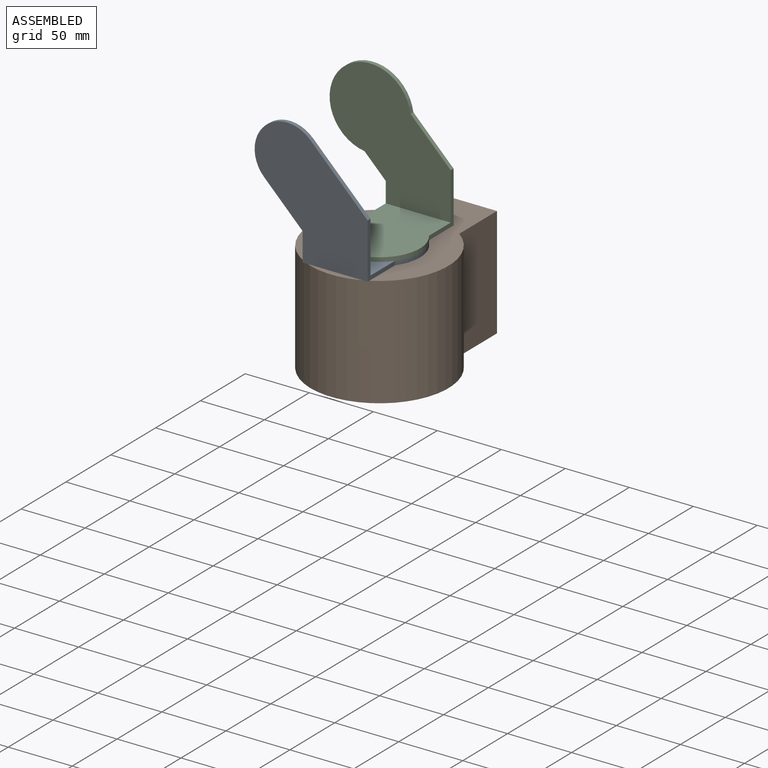
[diagram: assembled view]
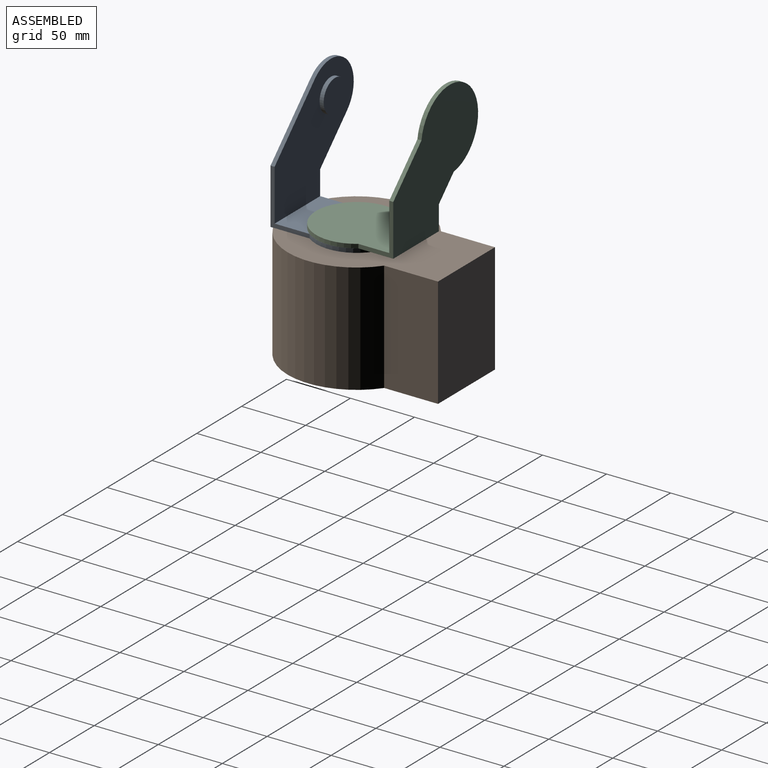
[diagram: assembled view, second angle]
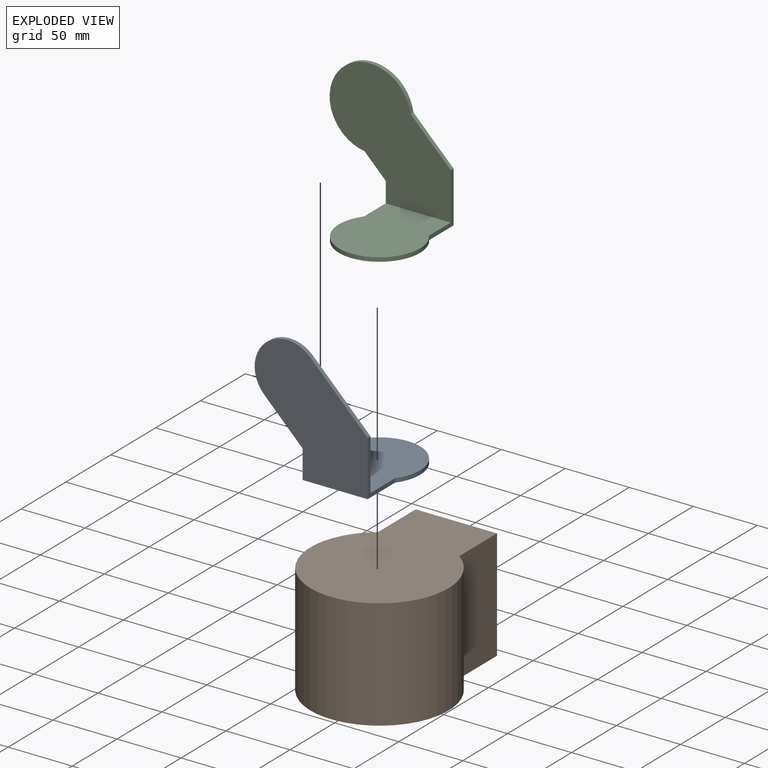
[diagram: exploded view]
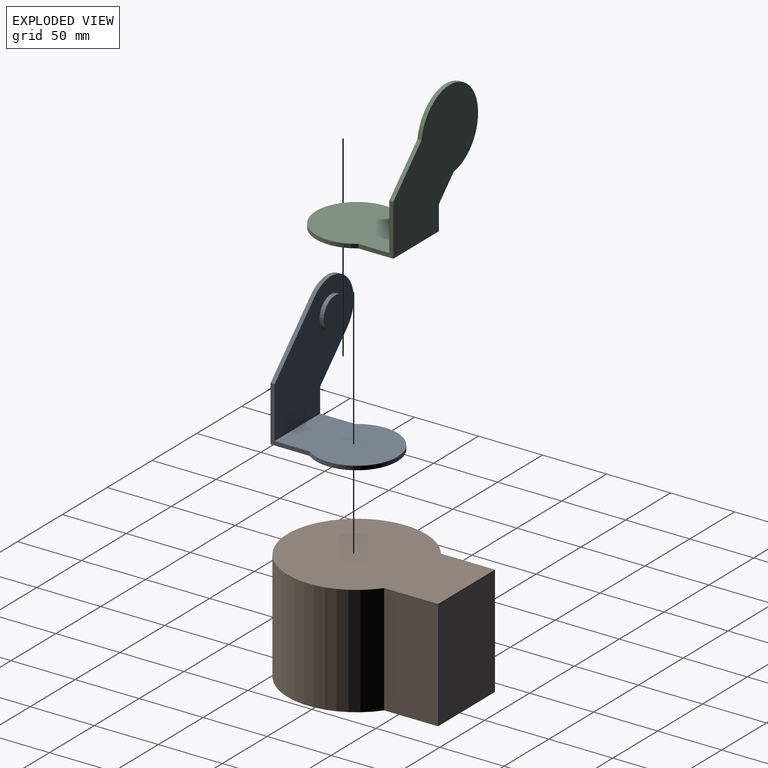
[diagram: exploded view, second angle]
ASSEMBLY  parts=3 mates=2
PART A: 12 faces, bbox 124x71x81.3 mm
  f0: plane 119.49x66.52mm, normal (0,0,-1), area 5368.2mm2, adj f2,f3,f4,f5,f8,f11
  f1: plane 117.25x64.27mm, normal (0,0,1), area 4700.2mm2, adj f2,f3,f4,f5,f6,f9,f11
  f2: cylinder r=25.4mm len=50.8mm, axis (0,0,-1), area 253.4mm2, adj f0,f1,f3,f11
  f3: plane 42.46x3.18mm, normal (0,1,0), area 134.8mm2, adj f0,f1,f2,f4
  f4: plane 30.48x15.72mm, normal (-0.71,0.71,0), area 157.3mm2, adj f0,f1,f3,f6,f7,f8
  f5: plane 30.59x30.59mm, normal (0.71,-0.71,0), area 224.1mm2, adj f0,f1,f6,f7,f8,f11
  f6: plane 78.11x44.9mm, normal (-0.71,-0.71,0), area 4103.1mm2, adj f1,f4,f5,f7
  f7: cylinder r=31.75mm len=50.8mm, axis (-0.71,-0.71,0), area 446.4mm2, adj f4,f5,f6,f8
  f8: plane 81.28x44.9mm, normal (0.71,0.71,0), area 4264.4mm2, adj f0,f4,f5,f7
  f9: cylinder r=12.7mm len=25.4mm, axis (0,0,-1), area 253.4mm2, adj f1,f10
  f10: plane 25.4x25.4mm, normal (0,0,1), area 506.7mm2, adj f9
  f11: plane 63.5x3.18mm, normal (0,-1,0), area 201.6mm2, adj f0,f1,f2,f5
PART B: 6 faces, bbox 108x139.7x86.4 mm
  f0: plane 86.36x42.08mm, normal (-1,0,0), area 3633.7mm2, adj f1,f3,f4,f5
  f1: cylinder r=53.98mm len=107.95mm, axis (0,0,-1), area 23425mm2, adj f0,f2,f4,f5
  f2: plane 86.36x42.08mm, normal (1,0,0), area 3633.7mm2, adj f1,f3,f4,f5
  f3: plane 86.36x63.5mm, normal (0,1,0), area 5483.9mm2, adj f0,f2,f4,f5
  f4: plane 139.7x107.95mm, normal (0,0,1), area 11378mm2, adj f0,f1,f2,f3
  f5: plane 139.7x107.95mm, normal (0,0,-1), area 11378mm2, adj f0,f1,f2,f3
PART C: 10 faces, bbox 75.1x128.1x78.1 mm
  f0: plane 28.35x28.35mm, normal (0.71,-0.71,0), area 203.9mm2, adj f2,f3,f5,f7,f8,f9
  f1: plane 27.31x13.47mm, normal (-0.71,0.71,0), area 137.1mm2, adj f2,f3,f6,f7,f8,f9
  f2: plane 123.6x70.62mm, normal (0,0,-1), area 5941.8mm2, adj f0,f1,f4,f5,f6,f9
  f3: cylinder r=31.75mm len=50.8mm, axis (-0.71,-0.71,0), area 446.4mm2, adj f0,f1,f8,f9
  f4: cylinder r=31.75mm len=63.5mm, axis (0,0,-1), area 446.4mm2, adj f2,f5,f6,f7
  f5: plane 44.45x3.18mm, normal (1,0,0), area 141.1mm2, adj f0,f2,f4,f7
  f6: plane 23.41x3.18mm, normal (-1,0,0), area 74.3mm2, adj f1,f2,f4,f7
  f7: plane 121.35x68.38mm, normal (0,0,1), area 5780.5mm2, adj f0,f1,f4,f5,f6,f8
  f8: plane 74.93x44.9mm, normal (0.71,0.71,0), area 3941.8mm2, adj f0,f1,f3,f7
  f9: plane 78.11x44.9mm, normal (-0.71,-0.71,0), area 4103.1mm2, adj f0,f1,f2,f3
PLACE A rot(axis=(-0.86,0.36,0.36),98.4deg) t=(43.4,-49.53,72.97)mm
PLACE B at identity
PLACE C rot(axis=(0.86,-0.36,0.36),98.4deg) t=(-7.63,46.36,92.06)mm
MATE fastened A.f7 <-> B.f1  axis (0,0,-1) through (0,0,43.18)mm
MATE fastened C.f3 <-> A.f7  axis (0,0,-1) through (0,0,46.36)mm
